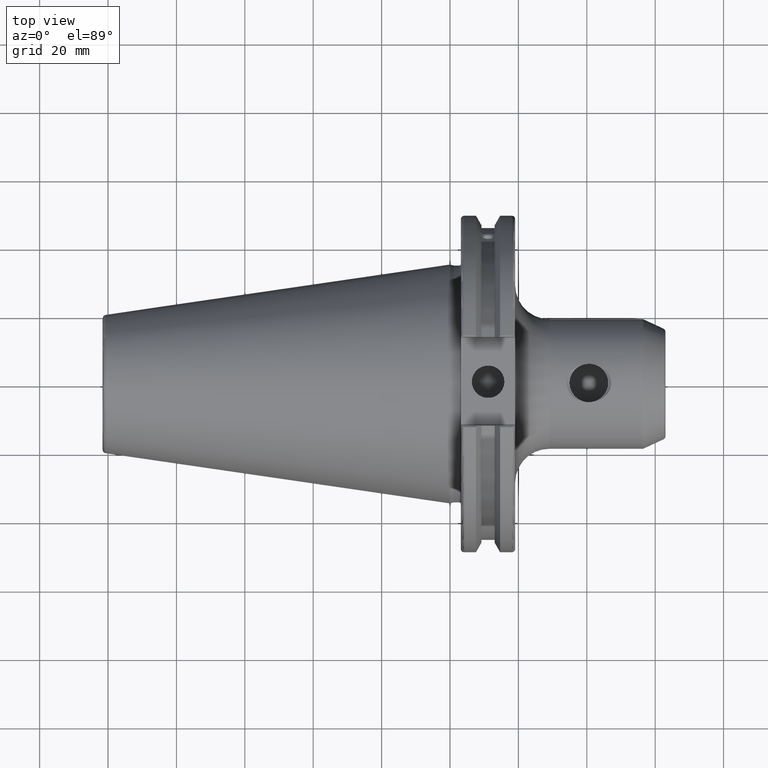
[diagram: clean part render]
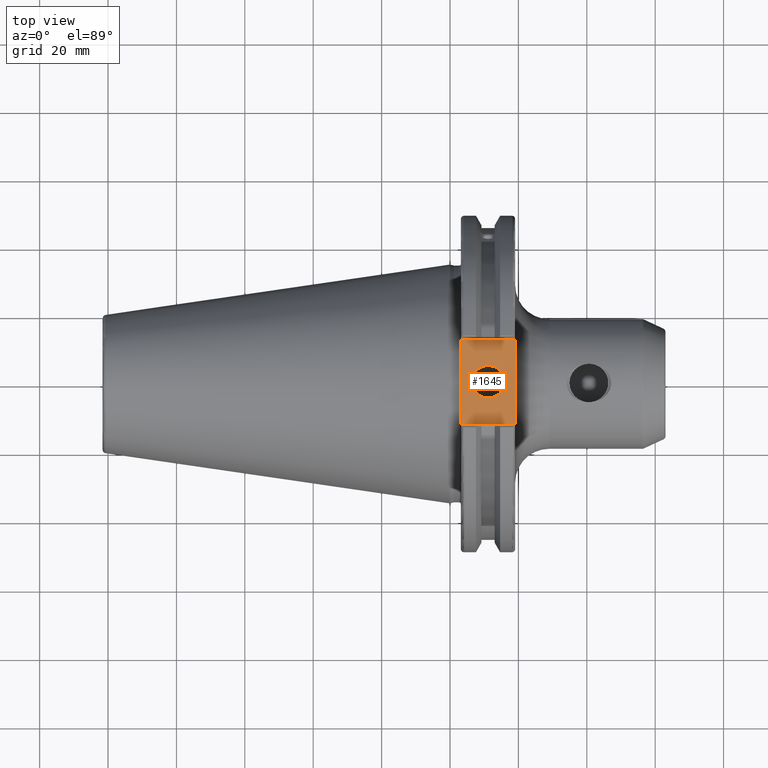
[diagram: same view with one face highlighted and labeled with its STEP entity id]
A machine part, top view. The second image highlights one B-rep face of the part: STEP entity #1645.
In plain terms, the highlighted planar face has unit normal (0, 0, 1).
Its self-contained STEP definition (entity closure, byte-faithful):
#52=FACE_BOUND('',#385,.T.);
#113=PLANE('',#1835);
#183=CIRCLE('',#1820,4.7625);
#275=FACE_OUTER_BOUND('',#384,.T.);
#384=EDGE_LOOP('',(#1516,#1517,#1518,#1519));
#385=EDGE_LOOP('',(#1520));
#455=LINE('',#2542,#551);
#493=LINE('',#3109,#589);
#524=LINE('',#3344,#620);
#526=LINE('',#3347,#622);
#551=VECTOR('',#1939,10.);
#589=VECTOR('',#2097,10.);
#620=VECTOR('',#2194,10.);
#622=VECTOR('',#2198,10.);
#674=VERTEX_POINT('',#2539);
#675=VERTEX_POINT('',#2541);
#753=VERTEX_POINT('',#3106);
#754=VERTEX_POINT('',#3108);
#800=VERTEX_POINT('',#3377);
#854=EDGE_CURVE('',#674,#675,#455,.T.);
#954=EDGE_CURVE('',#753,#754,#493,.T.);
#1020=EDGE_CURVE('',#675,#753,#524,.T.);
#1022=EDGE_CURVE('',#754,#674,#526,.T.);
#1034=EDGE_CURVE('',#800,#800,#183,.T.);
#1516=ORIENTED_EDGE('',*,*,#1020,.F.);
#1517=ORIENTED_EDGE('',*,*,#854,.F.);
#1518=ORIENTED_EDGE('',*,*,#1022,.F.);
#1519=ORIENTED_EDGE('',*,*,#954,.F.);
#1520=ORIENTED_EDGE('',*,*,#1034,.T.);
#1645=ADVANCED_FACE('',(#275,#52),#113,.T.);
#1820=AXIS2_PLACEMENT_3D('',#3378,#2230,#2231);
#1835=AXIS2_PLACEMENT_3D('',#3394,#2261,#2262);
#1939=DIRECTION('',(0.,-1.,0.));
#2097=DIRECTION('',(0.,1.,0.));
#2194=DIRECTION('',(-1.,1.31581988103722E-16,0.));
#2198=DIRECTION('',(1.,0.,0.));
#2230=DIRECTION('center_axis',(0.,0.,-1.));
#2231=DIRECTION('ref_axis',(1.,0.,0.));
#2261=DIRECTION('center_axis',(0.,0.,1.));
#2262=DIRECTION('ref_axis',(1.,0.,0.));
#2539=CARTESIAN_POINT('',(19.05,12.45,37.719));
#2541=CARTESIAN_POINT('',(19.05,-12.45,37.719));
#2542=CARTESIAN_POINT('',(19.05,0.,37.719));
#3106=CARTESIAN_POINT('',(3.175,-12.45,37.719));
#3108=CARTESIAN_POINT('',(3.175,12.45,37.719));
#3109=CARTESIAN_POINT('',(3.175,24.60625,37.719));
#3344=CARTESIAN_POINT('',(10.63125,-12.45,37.719));
#3347=CARTESIAN_POINT('',(19.06875,12.45,37.719));
#3377=CARTESIAN_POINT('',(6.3645,-5.83238038093927E-16,37.719));
#3378=CARTESIAN_POINT('Origin',(11.127,0.,37.719));
#3394=CARTESIAN_POINT('Origin',(18.0875,0.,37.719));